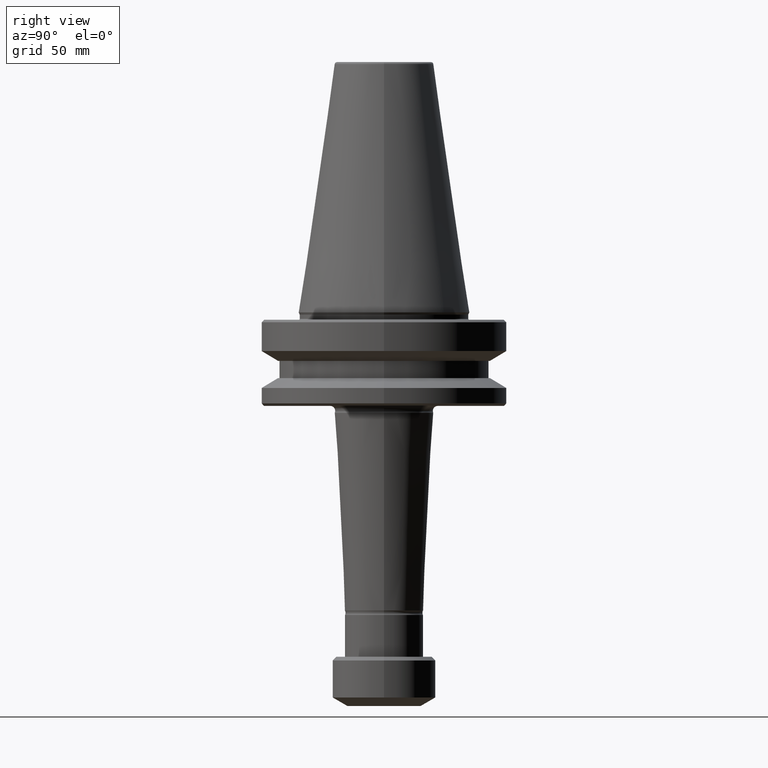
[diagram: clean part render]
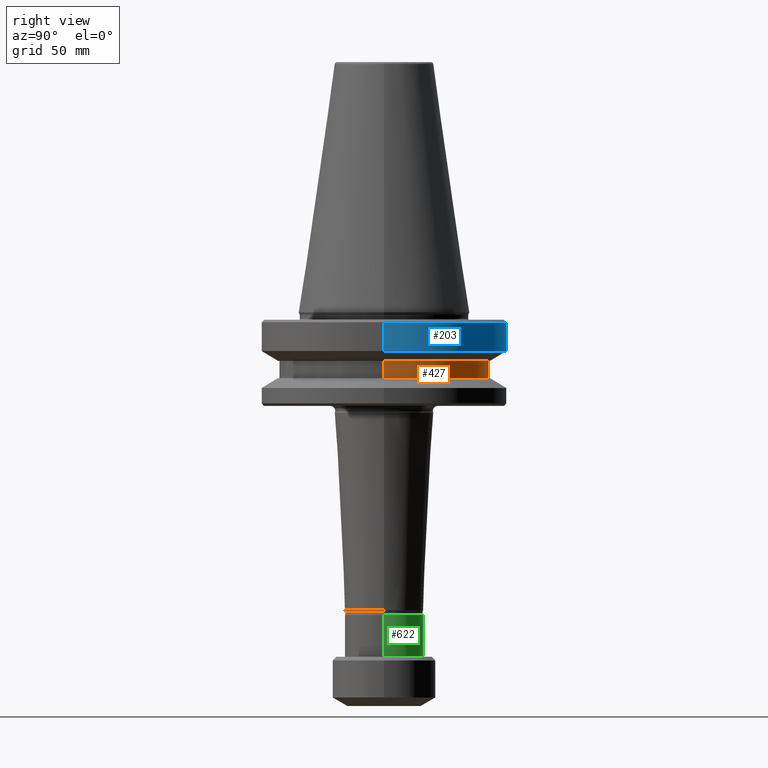
[diagram: same view with three faces highlighted in distinct colors, each labeled with its STEP entity id]
A machine part, right view with three faces highlighted in distinct colors.
Their STEP definitions:

[orange] entity #427 — the highlighted cylindrical surface (partial cylindrical patch) has radius 42.5 mm, axis along (-0, -0, 1).
#4 = CARTESIAN_POINT ( 'NONE',  ( -42.49999999999975800, 5.204748896376221700E-015, 122.8463315447037200 ) ) ;
#12 = AXIS2_PLACEMENT_3D ( 'NONE', #1133, #193, #16 ) ;
#16 = DIRECTION ( 'NONE',  ( 1.000000000000000000, 0.0000000000000000000, 0.0000000000000000000 ) ) ;
#22 = ORIENTED_EDGE ( 'NONE', *, *, #448, .F. ) ;
#54 = ORIENTED_EDGE ( 'NONE', *, *, #511, .T. ) ;
#74 = CYLINDRICAL_SURFACE ( 'NONE', #468, 42.49999999999975800 ) ;
#98 = CARTESIAN_POINT ( 'NONE',  ( 42.49999999999975800, 0.0000000000000000000, 122.8463315447037200 ) ) ;
#110 = VERTEX_POINT ( 'NONE', #252 ) ;
#193 = DIRECTION ( 'NONE',  ( -0.0000000000000000000, -0.0000000000000000000, 1.000000000000000000 ) ) ;
#199 = VERTEX_POINT ( 'NONE', #812 ) ;
#252 = CARTESIAN_POINT ( 'NONE',  ( 42.49999999999975800, 0.0000000000000000000, -19.70000000000070300 ) ) ;
#350 = EDGE_CURVE ( 'NONE', #199, #110, #1119, .T. ) ;
#425 = AXIS2_PLACEMENT_3D ( 'NONE', #761, #1337, #1252 ) ;
#427 = ADVANCED_FACE ( 'NONE', ( #918 ), #74, .T. ) ;
#448 = EDGE_CURVE ( 'NONE', #110, #604, #707, .T. ) ;
#457 = CARTESIAN_POINT ( 'NONE',  ( 0.0000000000000000000, 0.0000000000000000000, 122.8463315447037200 ) ) ;
#468 = AXIS2_PLACEMENT_3D ( 'NONE', #457, #1291, #497 ) ;
#497 = DIRECTION ( 'NONE',  ( 1.000000000000000000, 0.0000000000000000000, 0.0000000000000000000 ) ) ;
#511 = EDGE_CURVE ( 'NONE', #199, #1107, #610, .T. ) ;
#604 = VERTEX_POINT ( 'NONE', #1080 ) ;
#610 = CIRCLE ( 'NONE', #12, 42.49999999999975800 ) ;
#627 = EDGE_CURVE ( 'NONE', #1107, #604, #941, .T. ) ;
#667 = DIRECTION ( 'NONE',  ( -0.0000000000000000000, -0.0000000000000000000, 1.000000000000000000 ) ) ;
#707 = CIRCLE ( 'NONE', #425, 42.49999999999975800 ) ;
#761 = CARTESIAN_POINT ( 'NONE',  ( 0.0000000000000000000, 0.0000000000000000000, -19.70000000000070300 ) ) ;
#812 = CARTESIAN_POINT ( 'NONE',  ( 42.49999999999975800, 0.0000000000000000000, -26.70000000000071000 ) ) ;
#903 = VECTOR ( 'NONE', #667, 1000.000000000000000 ) ;
#918 = FACE_OUTER_BOUND ( 'NONE', #1321, .T. ) ;
#941 = LINE ( 'NONE', #4, #903 ) ;
#1080 = CARTESIAN_POINT ( 'NONE',  ( -42.49999999999975800, 5.204748896376221700E-015, -19.70000000000070300 ) ) ;
#1098 = ORIENTED_EDGE ( 'NONE', *, *, #627, .T. ) ;
#1107 = VERTEX_POINT ( 'NONE', #1381 ) ;
#1119 = LINE ( 'NONE', #98, #1310 ) ;
#1133 = CARTESIAN_POINT ( 'NONE',  ( 0.0000000000000000000, 0.0000000000000000000, -26.70000000000071000 ) ) ;
#1252 = DIRECTION ( 'NONE',  ( 1.000000000000000000, 0.0000000000000000000, 0.0000000000000000000 ) ) ;
#1263 = DIRECTION ( 'NONE',  ( -0.0000000000000000000, -0.0000000000000000000, 1.000000000000000000 ) ) ;
#1291 = DIRECTION ( 'NONE',  ( -0.0000000000000000000, -0.0000000000000000000, 1.000000000000000000 ) ) ;
#1310 = VECTOR ( 'NONE', #1263, 1000.000000000000000 ) ;
#1316 = ORIENTED_EDGE ( 'NONE', *, *, #350, .F. ) ;
#1321 = EDGE_LOOP ( 'NONE', ( #54, #1098, #22, #1316 ) ) ;
#1337 = DIRECTION ( 'NONE',  ( -0.0000000000000000000, -0.0000000000000000000, 1.000000000000000000 ) ) ;
#1381 = CARTESIAN_POINT ( 'NONE',  ( -42.49999999999975800, 5.204748896376221700E-015, -26.70000000000071000 ) ) ;

[blue] entity #203 — the highlighted cylindrical surface (partial cylindrical patch) has radius 50 mm, axis along (-0, -0, 1).
#5 = DIRECTION ( 'NONE',  ( 1.000000000000000000, 0.0000000000000000000, 0.0000000000000000000 ) ) ;
#65 = AXIS2_PLACEMENT_3D ( 'NONE', #1200, #1124, #1092 ) ;
#165 = EDGE_LOOP ( 'NONE', ( #936, #1023, #1249, #1103 ) ) ;
#203 = ADVANCED_FACE ( 'NONE', ( #1261 ), #1223, .T. ) ;
#235 = AXIS2_PLACEMENT_3D ( 'NONE', #406, #266, #5 ) ;
#266 = DIRECTION ( 'NONE',  ( -0.0000000000000000000, -0.0000000000000000000, 1.000000000000000000 ) ) ;
#282 = CARTESIAN_POINT ( 'NONE',  ( 0.0000000000000000000, 0.0000000000000000000, 122.8463315447037200 ) ) ;
#291 = LINE ( 'NONE', #1130, #847 ) ;
#335 = VERTEX_POINT ( 'NONE', #1301 ) ;
#337 = CIRCLE ( 'NONE', #235, 50.00000000000015600 ) ;
#406 = CARTESIAN_POINT ( 'NONE',  ( 0.0000000000000000000, 0.0000000000000000000, -15.70022000322783600 ) ) ;
#410 = EDGE_CURVE ( 'NONE', #822, #335, #996, .T. ) ;
#482 = EDGE_CURVE ( 'NONE', #822, #896, #337, .T. ) ;
#534 = CIRCLE ( 'NONE', #65, 50.00000000000015600 ) ;
#706 = EDGE_CURVE ( 'NONE', #335, #1045, #534, .T. ) ;
#822 = VERTEX_POINT ( 'NONE', #1136 ) ;
#847 = VECTOR ( 'NONE', #1187, 1000.000000000000000 ) ;
#896 = VERTEX_POINT ( 'NONE', #1059 ) ;
#936 = ORIENTED_EDGE ( 'NONE', *, *, #482, .T. ) ;
#960 = VECTOR ( 'NONE', #961, 1000.000000000000000 ) ;
#961 = DIRECTION ( 'NONE',  ( -0.0000000000000000000, -0.0000000000000000000, 1.000000000000000000 ) ) ;
#996 = LINE ( 'NONE', #1216, #960 ) ;
#1023 = ORIENTED_EDGE ( 'NONE', *, *, #1068, .T. ) ;
#1045 = VERTEX_POINT ( 'NONE', #1287 ) ;
#1059 = CARTESIAN_POINT ( 'NONE',  ( -50.00000000000015600, 6.123233995736785800E-015, -15.70022000322783600 ) ) ;
#1068 = EDGE_CURVE ( 'NONE', #896, #1045, #291, .T. ) ;
#1092 = DIRECTION ( 'NONE',  ( 1.000000000000000000, 0.0000000000000000000, 0.0000000000000000000 ) ) ;
#1103 = ORIENTED_EDGE ( 'NONE', *, *, #410, .F. ) ;
#1124 = DIRECTION ( 'NONE',  ( -0.0000000000000000000, -0.0000000000000000000, 1.000000000000000000 ) ) ;
#1130 = CARTESIAN_POINT ( 'NONE',  ( -50.00000000000015600, 6.123233995736785000E-015, 122.8463315447037200 ) ) ;
#1136 = CARTESIAN_POINT ( 'NONE',  ( 50.00000000000015600, 0.0000000000000000000, -15.70022000322783600 ) ) ;
#1158 = AXIS2_PLACEMENT_3D ( 'NONE', #282, #1222, #1318 ) ;
#1187 = DIRECTION ( 'NONE',  ( -0.0000000000000000000, -0.0000000000000000000, 1.000000000000000000 ) ) ;
#1200 = CARTESIAN_POINT ( 'NONE',  ( 0.0000000000000000000, 0.0000000000000000000, -4.000000000001377600 ) ) ;
#1216 = CARTESIAN_POINT ( 'NONE',  ( 50.00000000000015600, 0.0000000000000000000, 122.8463315447037200 ) ) ;
#1222 = DIRECTION ( 'NONE',  ( -0.0000000000000000000, -0.0000000000000000000, 1.000000000000000000 ) ) ;
#1223 = CYLINDRICAL_SURFACE ( 'NONE', #1158, 50.00000000000015600 ) ;
#1249 = ORIENTED_EDGE ( 'NONE', *, *, #706, .F. ) ;
#1261 = FACE_OUTER_BOUND ( 'NONE', #165, .T. ) ;
#1287 = CARTESIAN_POINT ( 'NONE',  ( -50.00000000000015600, 6.123233995736785000E-015, -4.000000000001377600 ) ) ;
#1301 = CARTESIAN_POINT ( 'NONE',  ( 50.00000000000015600, 0.0000000000000000000, -4.000000000001377600 ) ) ;
#1318 = DIRECTION ( 'NONE',  ( 1.000000000000000000, 0.0000000000000000000, 0.0000000000000000000 ) ) ;

[green] entity #622 — the highlighted cylindrical surface (partial cylindrical patch) has radius 15.95 mm, axis along (-0, -0, 1).
#28 = DIRECTION ( 'NONE',  ( -0.0000000000000000000, -0.0000000000000000000, 1.000000000000000000 ) ) ;
#57 = EDGE_LOOP ( 'NONE', ( #585, #825, #1013, #1085 ) ) ;
#82 = VERTEX_POINT ( 'NONE', #416 ) ;
#87 = CARTESIAN_POINT ( 'NONE',  ( -15.94999999999657800, 1.953311644639609200E-015, -123.0000000000011500 ) ) ;
#108 = VERTEX_POINT ( 'NONE', #87 ) ;
#136 = CIRCLE ( 'NONE', #1168, 15.94999999999657800 ) ;
#146 = AXIS2_PLACEMENT_3D ( 'NONE', #1340, #839, #879 ) ;
#149 = CARTESIAN_POINT ( 'NONE',  ( 0.0000000000000000000, 0.0000000000000000000, -123.0000000000011500 ) ) ;
#162 = DIRECTION ( 'NONE',  ( -1.000000000000000000, 0.0000000000000000000, 0.0000000000000000000 ) ) ;
#265 = EDGE_CURVE ( 'NONE', #1233, #82, #136, .T. ) ;
#275 = EDGE_CURVE ( 'NONE', #1164, #108, #376, .T. ) ;
#353 = CYLINDRICAL_SURFACE ( 'NONE', #146, 15.94999999999657800 ) ;
#376 = CIRCLE ( 'NONE', #685, 15.94999999999657800 ) ;
#402 = CARTESIAN_POINT ( 'NONE',  ( 0.0000000000000000000, 0.0000000000000000000, -139.9959493604803200 ) ) ;
#416 = CARTESIAN_POINT ( 'NONE',  ( 15.94999999999657800, 0.0000000000000000000, -139.9959493604803200 ) ) ;
#478 = CARTESIAN_POINT ( 'NONE',  ( -15.94999999999657800, 1.953311644639609200E-015, -139.9959493604803200 ) ) ;
#481 = DIRECTION ( 'NONE',  ( 0.0000000000000000000, 0.0000000000000000000, -1.000000000000000000 ) ) ;
#573 = DIRECTION ( 'NONE',  ( 1.000000000000000000, 0.0000000000000000000, 0.0000000000000000000 ) ) ;
#582 = LINE ( 'NONE', #1365, #860 ) ;
#585 = ORIENTED_EDGE ( 'NONE', *, *, #265, .F. ) ;
#613 = CARTESIAN_POINT ( 'NONE',  ( 15.94999999999657800, 0.0000000000000000000, -123.0000000000011500 ) ) ;
#622 = ADVANCED_FACE ( 'NONE', ( #1189 ), #353, .T. ) ;
#684 = DIRECTION ( 'NONE',  ( -0.0000000000000000000, -0.0000000000000000000, 1.000000000000000000 ) ) ;
#685 = AXIS2_PLACEMENT_3D ( 'NONE', #149, #758, #573 ) ;
#714 = EDGE_CURVE ( 'NONE', #82, #1164, #845, .T. ) ;
#758 = DIRECTION ( 'NONE',  ( -0.0000000000000000000, -0.0000000000000000000, 1.000000000000000000 ) ) ;
#825 = ORIENTED_EDGE ( 'NONE', *, *, #866, .T. ) ;
#839 = DIRECTION ( 'NONE',  ( -0.0000000000000000000, -0.0000000000000000000, 1.000000000000000000 ) ) ;
#845 = LINE ( 'NONE', #1258, #1345 ) ;
#860 = VECTOR ( 'NONE', #28, 1000.000000000000000 ) ;
#866 = EDGE_CURVE ( 'NONE', #1233, #108, #582, .T. ) ;
#879 = DIRECTION ( 'NONE',  ( 1.000000000000000000, 0.0000000000000000000, 0.0000000000000000000 ) ) ;
#1013 = ORIENTED_EDGE ( 'NONE', *, *, #275, .F. ) ;
#1085 = ORIENTED_EDGE ( 'NONE', *, *, #714, .F. ) ;
#1164 = VERTEX_POINT ( 'NONE', #613 ) ;
#1168 = AXIS2_PLACEMENT_3D ( 'NONE', #402, #481, #162 ) ;
#1189 = FACE_OUTER_BOUND ( 'NONE', #57, .T. ) ;
#1233 = VERTEX_POINT ( 'NONE', #478 ) ;
#1258 = CARTESIAN_POINT ( 'NONE',  ( 15.94999999999657800, 0.0000000000000000000, 122.8463315447037200 ) ) ;
#1340 = CARTESIAN_POINT ( 'NONE',  ( 0.0000000000000000000, 0.0000000000000000000, 122.8463315447037200 ) ) ;
#1345 = VECTOR ( 'NONE', #684, 1000.000000000000000 ) ;
#1365 = CARTESIAN_POINT ( 'NONE',  ( -15.94999999999657800, 1.953311644639609200E-015, 122.8463315447037200 ) ) ;